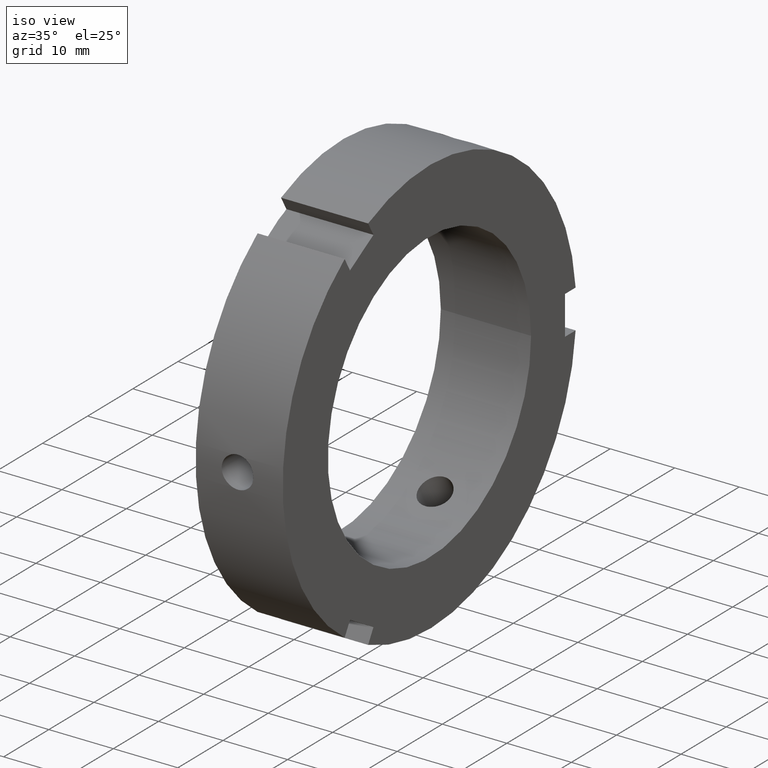
[diagram: clean part render]
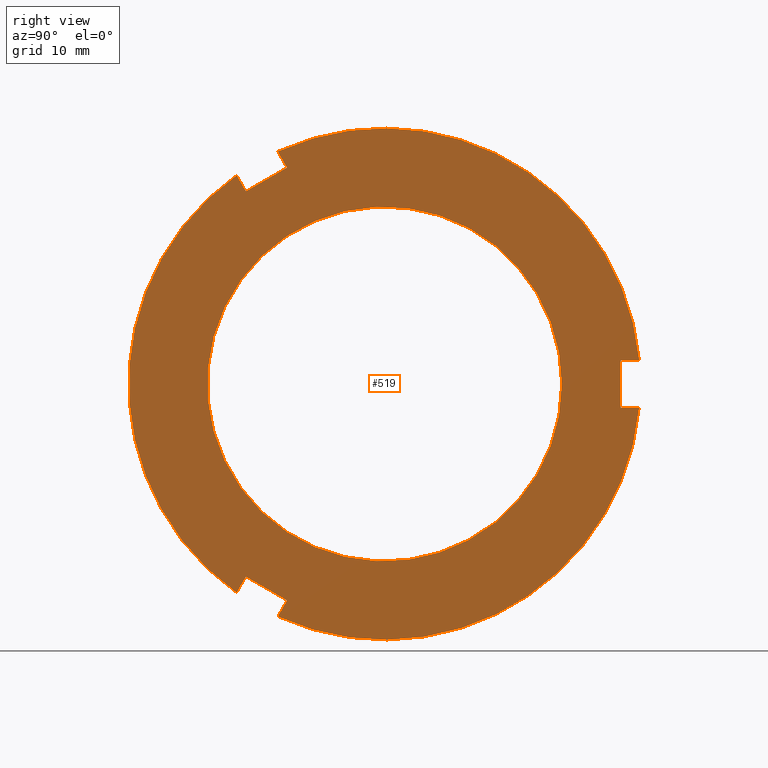
[diagram: tour spotlight — one face highlighted and labeled with its STEP entity id]
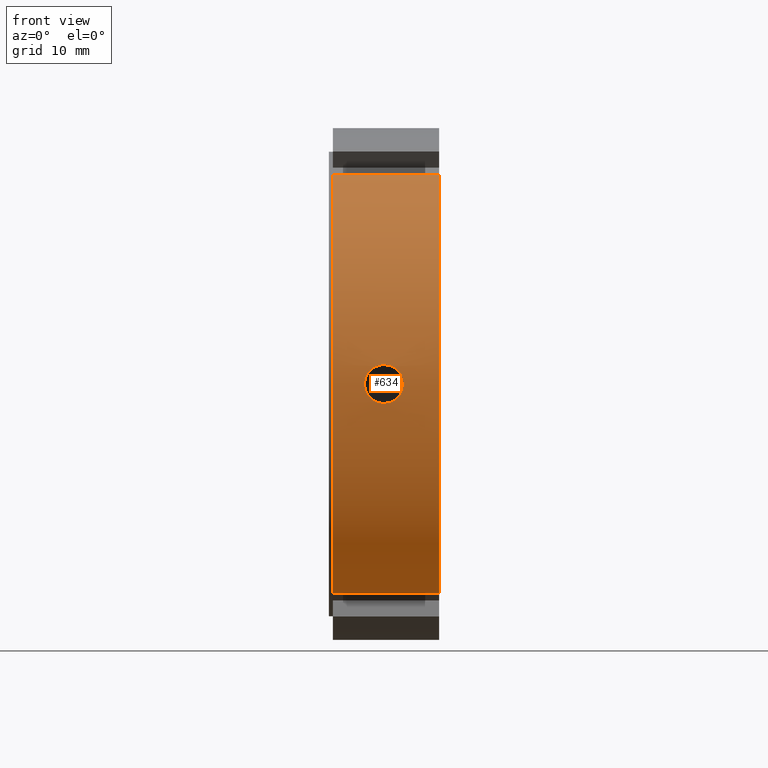
[diagram: tour spotlight — one face highlighted and labeled with its STEP entity id]
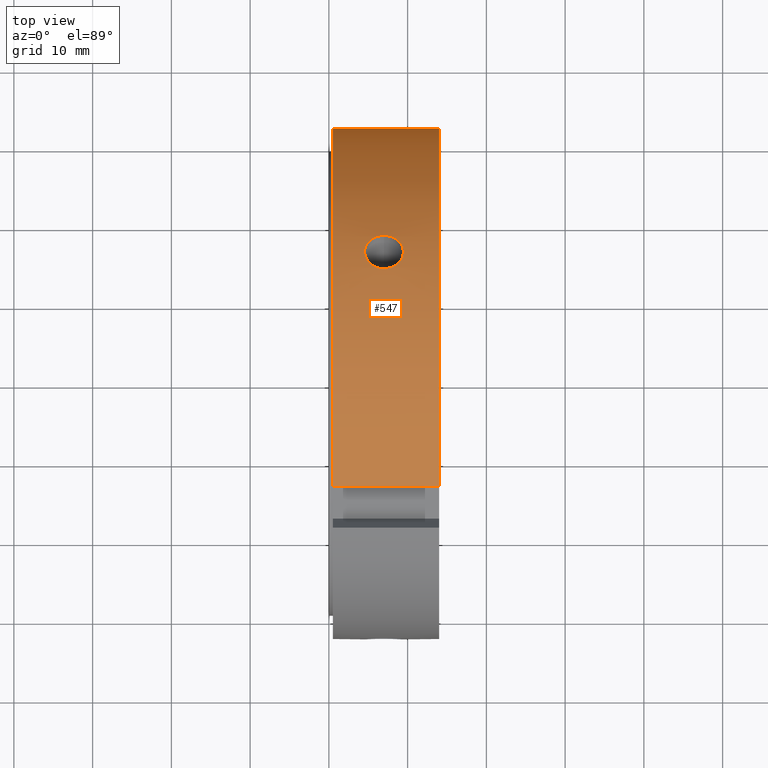
[diagram: tour spotlight — one face highlighted and labeled with its STEP entity id]
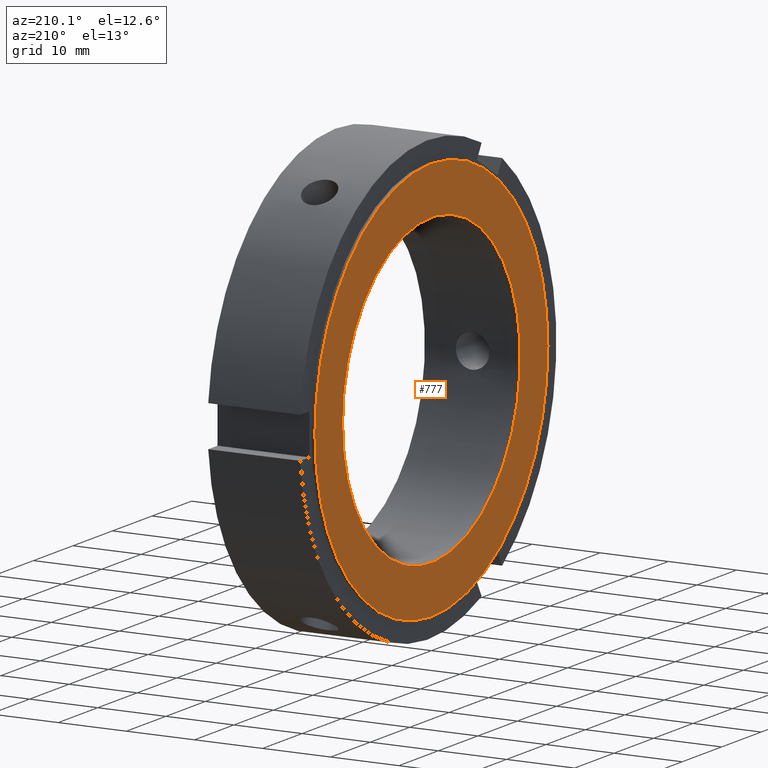
[diagram: tour spotlight — one face highlighted and labeled with its STEP entity id]
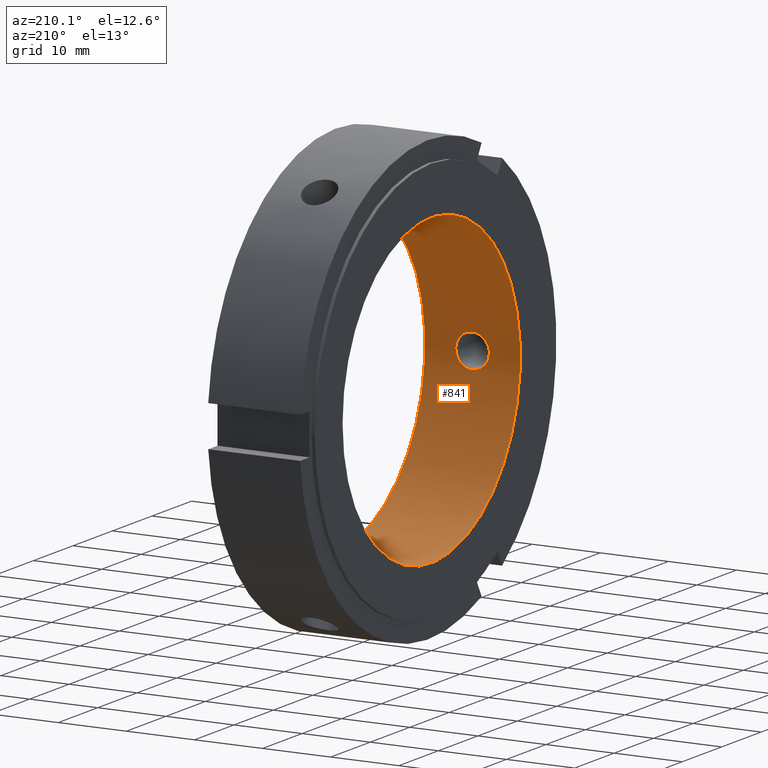
[diagram: tour spotlight — one face highlighted and labeled with its STEP entity id]
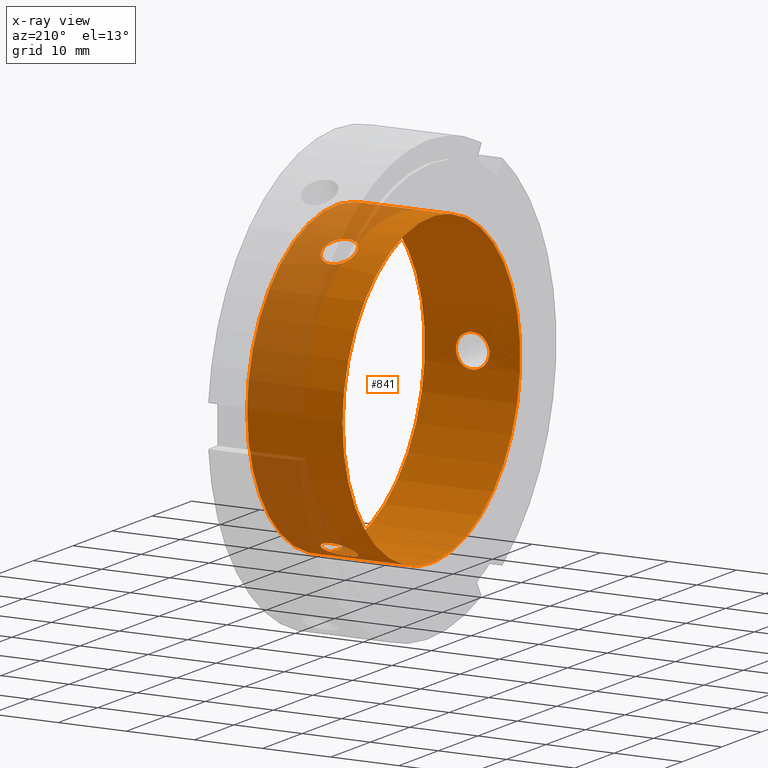
[diagram: x-ray of the same camera — body ghosted, this tour face saturated]
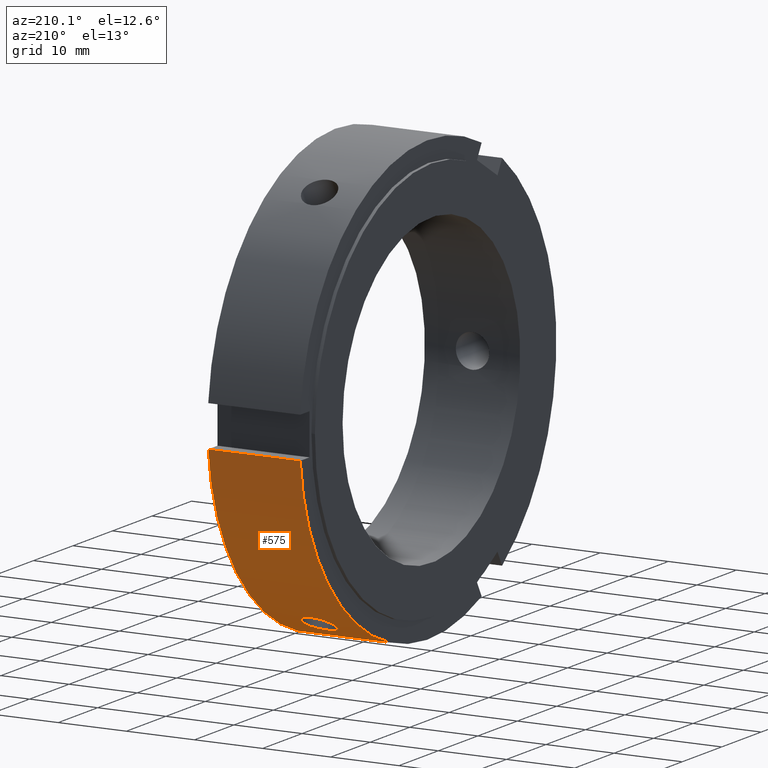
[diagram: tour spotlight — one face highlighted and labeled with its STEP entity id]
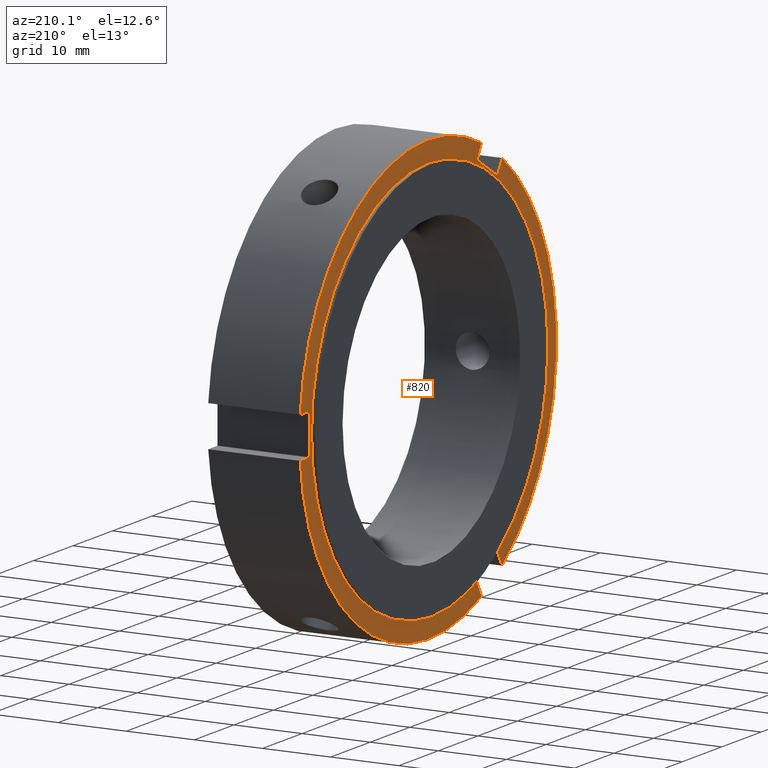
[diagram: tour spotlight — one face highlighted and labeled with its STEP entity id]
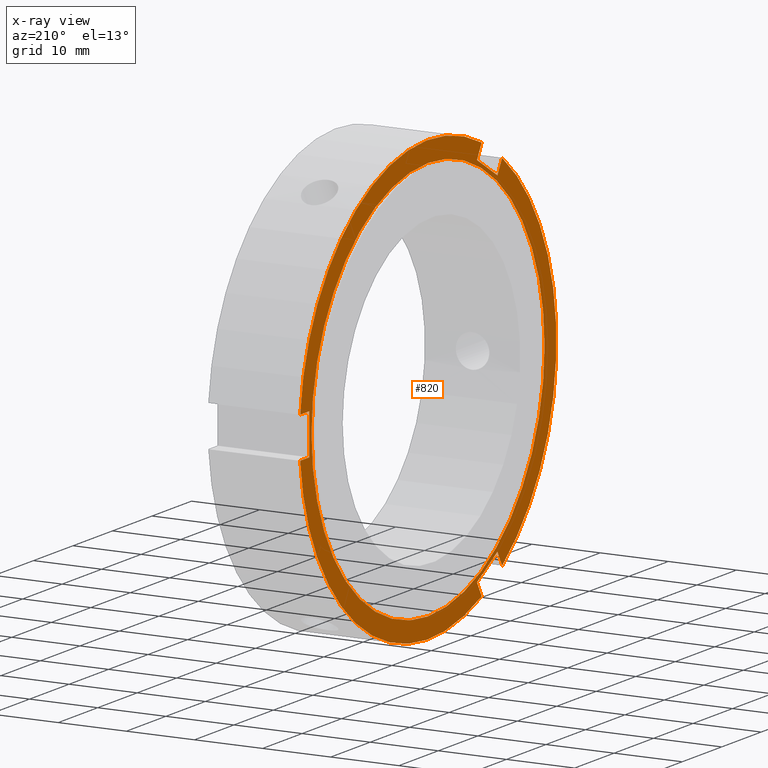
[diagram: x-ray of the same camera — body ghosted, this tour face saturated]
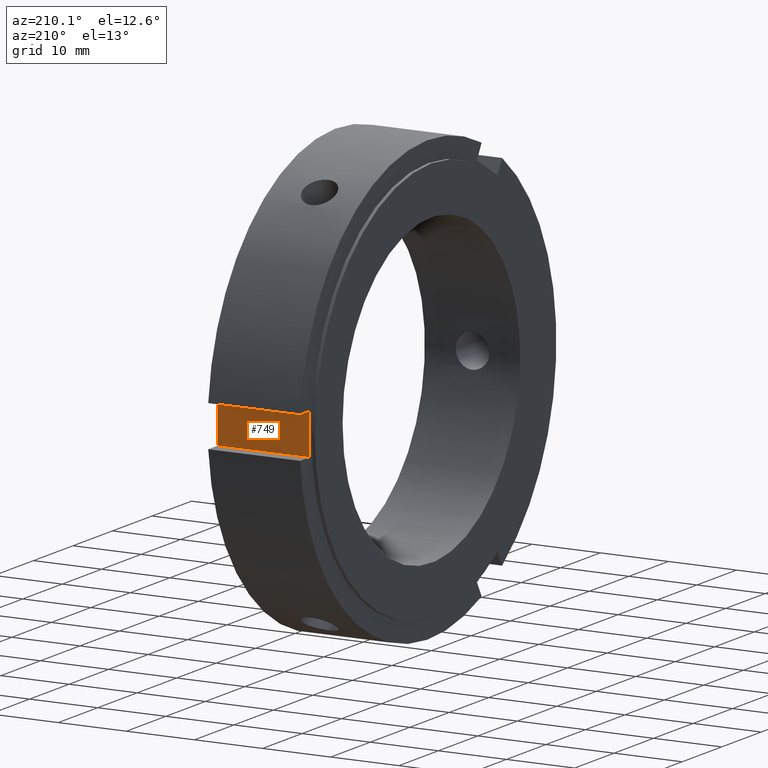
[diagram: tour spotlight — one face highlighted and labeled with its STEP entity id]
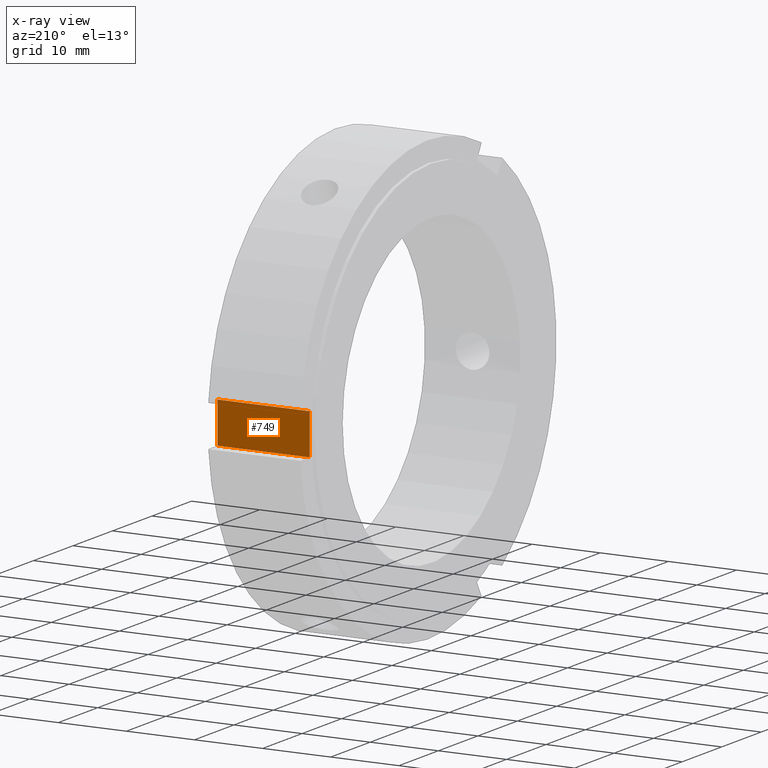
[diagram: x-ray of the same camera — body ghosted, this tour face saturated]
A machine part: a face-by-face anatomy tour. The part has 20 B-rep faces; the first image is the clean iso view, then the 8 largest visible faces are spotlighted one at a time (largest first), each with its STEP entity span.

Face 1 — right view, entity #519. In plain terms, the highlighted planar face has unit normal (1, 0, 0).
Definition (entity closure, byte-faithful):
#83=CARTESIAN_POINT('',(13.999999999999995,-17.598076211353330,-24.480762113533157));
#84=VERTEX_POINT('',#83);
#91=CARTESIAN_POINT('',(13.999999999999995,-18.778697336637737,-26.525657887014891));
#92=VERTEX_POINT('',#91);
#93=CARTESIAN_POINT('',(13.999999999999995,-18.778697336637741,-26.525657887014894));
#94=DIRECTION('',(0.0,0.500000000000000,0.866025403784439));
#95=VECTOR('',#94,2.361242250568814);
#96=LINE('',#93,#95);
#97=EDGE_CURVE('',#92,#84,#96,.T.);
#123=CARTESIAN_POINT('',(13.999999999999995,-13.582544913931107,-29.525657887014887));
#124=VERTEX_POINT('',#123);
#131=CARTESIAN_POINT('',(13.999999999999995,-12.401923788646702,-27.480762113533153));
#132=VERTEX_POINT('',#131);
#133=CARTESIAN_POINT('',(13.999999999999995,-12.401923788646705,-27.480762113533160));
#134=DIRECTION('',(0.0,-0.500000000000000,-0.866025403784438));
#135=VECTOR('',#134,2.361242250568819);
#136=LINE('',#133,#135);
#137=EDGE_CURVE('',#132,#124,#136,.T.);
#160=CARTESIAN_POINT('',(13.999999999999995,-17.598076211353337,-24.480762113533160));
#161=DIRECTION('',(0.0,0.866025403784438,-0.500000000000000));
#162=VECTOR('',#161,5.999999999999997);
#163=LINE('',#160,#162);
#164=EDGE_CURVE('',#84,#132,#163,.T.);
#273=CARTESIAN_POINT('',(13.999999999999995,-12.401923788646680,27.480762113533164));
#274=VERTEX_POINT('',#273);
#281=CARTESIAN_POINT('',(13.999999999999995,-13.582544913931088,29.525657887014898));
#282=VERTEX_POINT('',#281);
#283=CARTESIAN_POINT('',(13.999999999999995,-13.582544913931091,29.525657887014901));
#284=DIRECTION('',(0.0,0.500000000000000,-0.866025403784439));
#285=VECTOR('',#284,2.361242250568818);
#286=LINE('',#283,#285);
#287=EDGE_CURVE('',#282,#274,#286,.T.);
#313=CARTESIAN_POINT('',(13.999999999999995,-18.778697336637716,26.525657887014901));
#314=VERTEX_POINT('',#313);
#321=CARTESIAN_POINT('',(13.999999999999995,-17.598076211353309,24.480762113533167));
#322=VERTEX_POINT('',#321);
#323=CARTESIAN_POINT('',(13.999999999999995,-17.598076211353316,24.480762113533167));
#324=DIRECTION('',(0.0,-0.500000000000001,0.866025403784438));
#325=VECTOR('',#324,2.361242250568811);
#326=LINE('',#323,#325);
#327=EDGE_CURVE('',#322,#314,#326,.T.);
#350=CARTESIAN_POINT('',(13.999999999999995,-12.401923788646682,27.480762113533164));
#351=DIRECTION('',(0.0,-0.866025403784439,-0.500000000000000));
#352=VECTOR('',#351,5.999999999999996);
#353=LINE('',#350,#352);
#354=EDGE_CURVE('',#274,#322,#353,.T.);
#448=CARTESIAN_POINT('',(13.999999999999995,27.500000000000000,0.0));
#449=DIRECTION('',(1.0,0.0,0.0));
#450=DIRECTION('',(0.0,0.0,-1.0));
#451=AXIS2_PLACEMENT_3D('',#448,#449,#450);
#452=PLANE('',#451);
#453=ORIENTED_EDGE('',*,*,#97,.T.);
#454=ORIENTED_EDGE('',*,*,#164,.T.);
#455=ORIENTED_EDGE('',*,*,#137,.T.);
#456=CARTESIAN_POINT('',(13.999999999999995,32.361242250568814,-2.999999999999999));
#457=VERTEX_POINT('',#456);
#458=CARTESIAN_POINT('',(13.999999999999993,0.0,0.0));
#459=DIRECTION('',(1.0,0.0,0.0));
#460=DIRECTION('',(0.0,1.0,0.0));
#461=AXIS2_PLACEMENT_3D('',#458,#459,#460);
#462=CIRCLE('',#461,32.500000000000000);
#463=EDGE_CURVE('',#124,#457,#462,.T.);
#464=ORIENTED_EDGE('',*,*,#463,.T.);
#465=CARTESIAN_POINT('',(13.999999999999995,30.0,-2.999999999999999));
#466=VERTEX_POINT('',#465);
#467=CARTESIAN_POINT('',(13.999999999999995,32.361242250568814,-2.999999999999998));
#468=DIRECTION('',(0.0,-1.0,0.0));
#469=VECTOR('',#468,2.361242250568814);
#470=LINE('',#467,#469);
#471=EDGE_CURVE('',#457,#466,#470,.T.);
#472=ORIENTED_EDGE('',*,*,#471,.T.);
#473=CARTESIAN_POINT('',(13.999999999999995,30.0,2.999999999999999));
#474=VERTEX_POINT('',#473);
#475=CARTESIAN_POINT('',(13.999999999999995,30.0,-3.000000000000000));
#476=DIRECTION('',(0.0,0.0,1.0));
#477=VECTOR('',#476,5.999999999999998);
#478=LINE('',#475,#477);
#479=EDGE_CURVE('',#466,#474,#478,.T.);
#480=ORIENTED_EDGE('',*,*,#479,.T.);
#481=CARTESIAN_POINT('',(13.999999999999995,32.361242250568814,2.999999999999999));
#482=VERTEX_POINT('',#481);
#483=CARTESIAN_POINT('',(13.999999999999995,30.0,2.999999999999999));
#484=DIRECTION('',(0.0,1.0,0.0));
#485=VECTOR('',#484,2.361242250568814);
#486=LINE('',#483,#485);
#487=EDGE_CURVE('',#474,#482,#486,.T.);
#488=ORIENTED_EDGE('',*,*,#487,.T.);
#489=CARTESIAN_POINT('',(13.999999999999993,0.0,0.0));
#490=DIRECTION('',(1.0,0.0,0.0));
#491=DIRECTION('',(0.0,1.0,0.0));
#492=AXIS2_PLACEMENT_3D('',#489,#490,#491);
#493=CIRCLE('',#492,32.500000000000000);
#494=EDGE_CURVE('',#482,#282,#493,.T.);
#495=ORIENTED_EDGE('',*,*,#494,.T.);
#496=ORIENTED_EDGE('',*,*,#287,.T.);
#497=ORIENTED_EDGE('',*,*,#354,.T.);
#498=ORIENTED_EDGE('',*,*,#327,.T.);
#499=CARTESIAN_POINT('',(13.999999999999993,0.0,0.0));
#500=DIRECTION('',(1.0,0.0,0.0));
#501=DIRECTION('',(0.0,1.0,0.0));
#502=AXIS2_PLACEMENT_3D('',#499,#500,#501);
#503=CIRCLE('',#502,32.500000000000000);
#504=EDGE_CURVE('',#314,#92,#503,.T.);
#505=ORIENTED_EDGE('',*,*,#504,.T.);
#506=EDGE_LOOP('',(#453,#454,#455,#464,#472,#480,#488,#495,#496,#497,#498,#505));
#507=FACE_OUTER_BOUND('',#506,.T.);
#508=CARTESIAN_POINT('',(13.999999999999995,22.500000000000000,0.0));
#509=VERTEX_POINT('',#508);
#510=CARTESIAN_POINT('',(13.999999999999995,0.0,0.0));
#511=DIRECTION('',(1.0,0.0,0.0));
#512=DIRECTION('',(0.0,1.0,0.0));
#513=AXIS2_PLACEMENT_3D('',#510,#511,#512);
#514=CIRCLE('',#513,22.500000000000000);
#515=EDGE_CURVE('',#509,#509,#514,.T.);
#516=ORIENTED_EDGE('',*,*,#515,.F.);
#517=EDGE_LOOP('',(#516));
#518=FACE_BOUND('',#517,.T.);
#519=ADVANCED_FACE('',(#507,#518),#452,.T.);

Face 2 — front view, entity #634. In plain terms, the highlighted cylindrical surface (partial cylindrical patch) has radius 32.5 mm, axis along (1, 0, 0).
Definition (entity closure, byte-faithful):
#75=CARTESIAN_POINT('',(0.499999999999994,-18.778697336637734,-26.525657887014880));
#76=VERTEX_POINT('',#75);
#91=CARTESIAN_POINT('',(13.999999999999995,-18.778697336637737,-26.525657887014891));
#92=VERTEX_POINT('',#91);
#99=CARTESIAN_POINT('',(0.499999999999994,-18.778697336637734,-26.525657887014880));
#100=DIRECTION('',(1.0,0.0,0.0));
#101=VECTOR('',#100,13.500000000000000);
#102=LINE('',#99,#101);
#103=EDGE_CURVE('',#76,#92,#102,.T.);
#303=CARTESIAN_POINT('',(0.499999999999994,-18.778697336637716,26.525657887014894));
#304=VERTEX_POINT('',#303);
#313=CARTESIAN_POINT('',(13.999999999999995,-18.778697336637716,26.525657887014901));
#314=VERTEX_POINT('',#313);
#315=CARTESIAN_POINT('',(13.999999999999995,-18.778697336637716,26.525657887014901));
#316=DIRECTION('',(-1.0,0.0,0.0));
#317=VECTOR('',#316,13.500000000000000);
#318=LINE('',#315,#317);
#319=EDGE_CURVE('',#314,#304,#318,.T.);
#499=CARTESIAN_POINT('',(13.999999999999993,0.0,0.0));
#500=DIRECTION('',(1.0,0.0,0.0));
#501=DIRECTION('',(0.0,1.0,0.0));
#502=AXIS2_PLACEMENT_3D('',#499,#500,#501);
#503=CIRCLE('',#502,32.500000000000000);
#504=EDGE_CURVE('',#314,#92,#503,.T.);
#576=CARTESIAN_POINT('',(7.249999999999993,0.0,0.0));
#577=DIRECTION('',(1.0,0.0,0.0));
#578=DIRECTION('',(0.0,1.0,0.0));
#579=AXIS2_PLACEMENT_3D('',#576,#577,#578);
#580=CYLINDRICAL_SURFACE('',#579,32.500000000000000);
#581=ORIENTED_EDGE('',*,*,#103,.T.);
#582=ORIENTED_EDGE('',*,*,#504,.F.);
#583=ORIENTED_EDGE('',*,*,#319,.T.);
#584=CARTESIAN_POINT('',(0.499999999999994,0.0,0.0));
#585=DIRECTION('',(1.0,0.0,0.0));
#586=DIRECTION('',(0.0,1.0,0.0));
#587=AXIS2_PLACEMENT_3D('',#584,#585,#586);
#588=CIRCLE('',#587,32.499999999999993);
#589=EDGE_CURVE('',#304,#76,#588,.T.);
#590=ORIENTED_EDGE('',*,*,#589,.T.);
#591=EDGE_LOOP('',(#581,#582,#583,#590));
#592=FACE_OUTER_BOUND('',#591,.T.);
#593=CARTESIAN_POINT('',(6.999999999999994,-32.406878556102868,2.458500000000000));
#594=VERTEX_POINT('',#593);
#595=CARTESIAN_POINT('',(6.999999999999994,-32.406878556102868,2.458500000000000));
#596=CARTESIAN_POINT('',(7.308821499924727,-32.406878556102868,2.458500000000000));
#597=CARTESIAN_POINT('',(7.638146662988195,-32.411747431313700,2.396757788500281));
#598=CARTESIAN_POINT('',(8.243835254064031,-32.429327258547140,2.145822212323964));
#599=CARTESIAN_POINT('',(8.520208722892996,-32.441783734851064,1.956635320201254));
#600=CARTESIAN_POINT('',(8.956635077962162,-32.465161608583060,1.520208965132088));
#601=CARTESIAN_POINT('',(9.145822157180261,-32.477602516972169,1.243835388814245));
#602=CARTESIAN_POINT('',(9.396757878626824,-32.495146727474257,0.638146443799135));
#603=CARTESIAN_POINT('',(9.458499999999994,-32.500000000000000,0.308821157101273));
#604=CARTESIAN_POINT('',(9.458499999999994,-32.500000000000000,-0.308821157101272));
#605=CARTESIAN_POINT('',(9.396757878626824,-32.495146727474257,-0.638146443799134));
#606=CARTESIAN_POINT('',(9.145822157180261,-32.477602516972169,-1.243835388814244));
#607=CARTESIAN_POINT('',(8.956635077962162,-32.465161608583060,-1.520208965132088));
#608=CARTESIAN_POINT('',(8.520208722892996,-32.441783734851064,-1.956635320201254));
#609=CARTESIAN_POINT('',(8.243835254064031,-32.429327258547140,-2.145822212323964));
#610=CARTESIAN_POINT('',(7.638146662988195,-32.411747431313700,-2.396757788500281));
#611=CARTESIAN_POINT('',(7.308821499924727,-32.406878556102868,-2.458500000000000));
#612=CARTESIAN_POINT('',(6.691178500075261,-32.406878556102868,-2.458500000000000));
#613=CARTESIAN_POINT('',(6.361853337011794,-32.411747431313700,-2.396757788500281));
#614=CARTESIAN_POINT('',(5.756164745935958,-32.429327258547140,-2.145822212323964));
#615=CARTESIAN_POINT('',(5.479791277106994,-32.441783734851064,-1.956635320201254));
#616=CARTESIAN_POINT('',(5.043364922037828,-32.465161608583060,-1.520208965132088));
#617=CARTESIAN_POINT('',(4.854177842819729,-32.477602516972169,-1.243835388814245));
#618=CARTESIAN_POINT('',(4.603242121373166,-32.495146727474257,-0.638146443799135));
#619=CARTESIAN_POINT('',(4.541499999999994,-32.500000000000000,-0.308821157101273));
#620=CARTESIAN_POINT('',(4.541499999999994,-32.500000000000000,0.308821157101272));
#621=CARTESIAN_POINT('',(4.603242121373166,-32.495146727474257,0.638146443799134));
#622=CARTESIAN_POINT('',(4.854177842819728,-32.477602516972169,1.243835388814244));
#623=CARTESIAN_POINT('',(5.043364922037828,-32.465161608583060,1.520208965132087));
#624=CARTESIAN_POINT('',(5.479791277106994,-32.441783734851064,1.956635320201253));
#625=CARTESIAN_POINT('',(5.756164745935957,-32.429327258547140,2.145822212323964));
#626=CARTESIAN_POINT('',(6.361853337011794,-32.411747431313700,2.396757788500281));
#627=CARTESIAN_POINT('',(6.691178500075260,-32.406878556102868,2.458500000000000));
#628=CARTESIAN_POINT('',(6.999999999999993,-32.406878556102868,2.458500000000000));
#629=B_SPLINE_CURVE_WITH_KNOTS('',3,(#595,#596,#597,#598,#599,#600,#601,#602,#603,#604,#605,#606,#607,#608,#609,#610,#611,#612,#613,#614,#615,#616,#617,#618,#619,#620,#621,#622,#623,#624,#625,#626,#627,#628),.UNSPECIFIED.,.T.,.U.,(4,2,2,2,2,2,2,2,2,2,2,2,2,2,2,2,4),(0.0,0.092646449977420,0.185292899954840,0.277939247085222,0.370585594215604,0.463231941345985,0.555878288476367,0.648524738453787,0.741171188431207,0.833817638408627,0.926464088386047,1.019110435516429,1.111756782646811,1.204403129777192,1.297049476907574,1.389695926884994,1.482342376862414),.UNSPECIFIED.);
#630=EDGE_CURVE('',#594,#594,#629,.T.);
#631=ORIENTED_EDGE('',*,*,#630,.T.);
#632=EDGE_LOOP('',(#631));
#633=FACE_BOUND('',#632,.T.);
#634=ADVANCED_FACE('',(#592,#633),#580,.T.);

Face 3 — top view, entity #547. In plain terms, the highlighted cylindrical surface (partial cylindrical patch) has radius 32.5 mm, axis along (1, 0, 0).
Definition (entity closure, byte-faithful):
#175=CARTESIAN_POINT('',(6.999999999999994,18.332562733255489,26.835930086942248));
#176=VERTEX_POINT('',#175);
#177=CARTESIAN_POINT('',(6.999999999999994,18.332562733255489,26.835930086942241));
#178=CARTESIAN_POINT('',(7.308821499924727,18.332562733255489,26.835930086942241));
#179=CARTESIAN_POINT('',(7.638146662988192,18.281526847216313,26.871017762312540));
#180=CARTESIAN_POINT('',(8.243835254064029,18.073000177151062,27.011710127379004));
#181=CARTESIAN_POINT('',(8.520208722892996,17.915387760661726,27.117091198361180));
#182=CARTESIAN_POINT('',(8.956635077962162,17.549120387156776,27.355550208434138));
#183=CARTESIAN_POINT('',(9.145822157180259,17.315994303325329,27.504511139304189));
#184=CARTESIAN_POINT('',(9.396757878626822,16.800224395401898,27.822549343795899));
#185=CARTESIAN_POINT('',(9.458499999999994,16.517446967275813,27.991415044443599));
#186=CARTESIAN_POINT('',(9.458499999999994,15.982553032724198,28.300236201544877));
#187=CARTESIAN_POINT('',(9.396757878626824,15.694922332072395,28.460695787595036));
#188=CARTESIAN_POINT('',(9.145822157180261,15.161608213646865,28.748346528118436));
#189=CARTESIAN_POINT('',(8.956635077962162,14.916041221426299,28.875759173566227));
#190=CARTESIAN_POINT('',(8.520208722892996,14.526395974189356,29.073726518562442));
#191=CARTESIAN_POINT('',(8.243835254064027,14.356327081396108,29.157532339702961));
#192=CARTESIAN_POINT('',(7.638146662988192,14.130220584097410,29.267775550812818));
#193=CARTESIAN_POINT('',(7.308821499924727,14.074315822847403,29.294430086942249));
#194=CARTESIAN_POINT('',(6.691178500075261,14.074315822847403,29.294430086942249));
#195=CARTESIAN_POINT('',(6.361853337011797,14.130220584097408,29.267775550812818));
#196=CARTESIAN_POINT('',(5.756164745935962,14.356327081396106,29.157532339702961));
#197=CARTESIAN_POINT('',(5.479791277106996,14.526395974189352,29.073726518562445));
#198=CARTESIAN_POINT('',(5.043364922037828,14.916041221426294,28.875759173566237));
#199=CARTESIAN_POINT('',(4.854177842819732,15.161608213646861,28.748346528118439));
#200=CARTESIAN_POINT('',(4.603242121373167,15.694922332072391,28.460695787595039));
#201=CARTESIAN_POINT('',(4.541499999999994,15.982553032724196,28.300236201544870));
#202=CARTESIAN_POINT('',(4.541499999999994,16.517446967275813,27.991415044443599));
#203=CARTESIAN_POINT('',(4.603242121373166,16.800224395401891,27.822549343795902));
#204=CARTESIAN_POINT('',(4.854177842819729,17.315994303325326,27.504511139304192));
#205=CARTESIAN_POINT('',(5.043364922037828,17.549120387156776,27.355550208434138));
#206=CARTESIAN_POINT('',(5.479791277106994,17.915387760661726,27.117091198361180));
#207=CARTESIAN_POINT('',(5.756164745935958,18.073000177151062,27.011710127379004));
#208=CARTESIAN_POINT('',(6.361853337011796,18.281526847216313,26.871017762312540));
#209=CARTESIAN_POINT('',(6.691178500075260,18.332562733255489,26.835930086942241));
#210=CARTESIAN_POINT('',(6.999999999999993,18.332562733255489,26.835930086942241));
#211=B_SPLINE_CURVE_WITH_KNOTS('',3,(#177,#178,#179,#180,#181,#182,#183,#184,#185,#186,#187,#188,#189,#190,#191,#192,#193,#194,#195,#196,#197,#198,#199,#200,#201,#202,#203,#204,#205,#206,#207,#208,#209,#210),.UNSPECIFIED.,.T.,.U.,(4,2,2,2,2,2,2,2,2,2,2,2,2,2,2,2,4),(0.0,0.092646449977420,0.185292899954840,0.277939247085222,0.370585594215604,0.463231941345986,0.555878288476367,0.648524738453787,0.741171188431207,0.833817638408627,0.926464088386047,1.019110435516429,1.111756782646812,1.204403129777194,1.297049476907576,1.389695926884996,1.482342376862416),.UNSPECIFIED.);
#212=EDGE_CURVE('',#176,#176,#211,.T.);
#265=CARTESIAN_POINT('',(0.499999999999994,-13.582544913931084,29.525657887014894));
#266=VERTEX_POINT('',#265);
#281=CARTESIAN_POINT('',(13.999999999999995,-13.582544913931088,29.525657887014898));
#282=VERTEX_POINT('',#281);
#289=CARTESIAN_POINT('',(0.499999999999994,-13.582544913931084,29.525657887014898));
#290=DIRECTION('',(1.0,0.0,0.0));
#291=VECTOR('',#290,13.500000000000000);
#292=LINE('',#289,#291);
#293=EDGE_CURVE('',#266,#282,#292,.T.);
#481=CARTESIAN_POINT('',(13.999999999999995,32.361242250568814,2.999999999999999));
#482=VERTEX_POINT('',#481);
#489=CARTESIAN_POINT('',(13.999999999999993,0.0,0.0));
#490=DIRECTION('',(1.0,0.0,0.0));
#491=DIRECTION('',(0.0,1.0,0.0));
#492=AXIS2_PLACEMENT_3D('',#489,#490,#491);
#493=CIRCLE('',#492,32.500000000000000);
#494=EDGE_CURVE('',#482,#282,#493,.T.);
#520=CARTESIAN_POINT('',(7.249999999999993,0.0,0.0));
#521=DIRECTION('',(1.0,0.0,0.0));
#522=DIRECTION('',(0.0,1.0,0.0));
#523=AXIS2_PLACEMENT_3D('',#520,#521,#522);
#524=CYLINDRICAL_SURFACE('',#523,32.500000000000000);
#525=ORIENTED_EDGE('',*,*,#293,.T.);
#526=ORIENTED_EDGE('',*,*,#494,.F.);
#527=CARTESIAN_POINT('',(0.499999999999994,32.361242250568807,2.999999999999999));
#528=VERTEX_POINT('',#527);
#529=CARTESIAN_POINT('',(13.999999999999995,32.361242250568814,2.999999999999999));
#530=DIRECTION('',(-1.0,0.0,0.0));
#531=VECTOR('',#530,13.500000000000000);
#532=LINE('',#529,#531);
#533=EDGE_CURVE('',#482,#528,#532,.T.);
#534=ORIENTED_EDGE('',*,*,#533,.T.);
#535=CARTESIAN_POINT('',(0.499999999999994,0.0,0.0));
#536=DIRECTION('',(1.0,0.0,0.0));
#537=DIRECTION('',(0.0,1.0,0.0));
#538=AXIS2_PLACEMENT_3D('',#535,#536,#537);
#539=CIRCLE('',#538,32.499999999999993);
#540=EDGE_CURVE('',#528,#266,#539,.T.);
#541=ORIENTED_EDGE('',*,*,#540,.T.);
#542=EDGE_LOOP('',(#525,#526,#534,#541));
#543=FACE_OUTER_BOUND('',#542,.T.);
#544=ORIENTED_EDGE('',*,*,#212,.T.);
#545=EDGE_LOOP('',(#544));
#546=FACE_BOUND('',#545,.T.);
#547=ADVANCED_FACE('',(#543,#546),#524,.T.);

Face 4 — auxiliary view, entity #777. In plain terms, the highlighted planar face has unit normal (-1, 0, 0).
Definition (entity closure, byte-faithful):
#750=CARTESIAN_POINT('',(-7.438286E-015,26.0,0.0));
#751=DIRECTION('',(-1.0,0.0,0.0));
#752=DIRECTION('',(0.0,0.0,1.0));
#753=AXIS2_PLACEMENT_3D('',#750,#751,#752);
#754=PLANE('',#753);
#755=CARTESIAN_POINT('',(-8.881784E-015,29.500000000000000,0.0));
#756=VERTEX_POINT('',#755);
#757=CARTESIAN_POINT('',(-8.881784E-015,0.0,0.0));
#758=DIRECTION('',(1.0,0.0,0.0));
#759=DIRECTION('',(0.0,1.0,0.0));
#760=AXIS2_PLACEMENT_3D('',#757,#758,#759);
#761=CIRCLE('',#760,29.500000000000000);
#762=EDGE_CURVE('',#756,#756,#761,.T.);
#763=ORIENTED_EDGE('',*,*,#762,.F.);
#764=EDGE_LOOP('',(#763));
#765=FACE_OUTER_BOUND('',#764,.T.);
#766=CARTESIAN_POINT('',(-5.994788E-015,22.500000000000000,0.0));
#767=VERTEX_POINT('',#766);
#768=CARTESIAN_POINT('',(-5.995638E-015,0.0,0.0));
#769=DIRECTION('',(1.0,0.0,0.0));
#770=DIRECTION('',(0.0,1.0,0.0));
#771=AXIS2_PLACEMENT_3D('',#768,#769,#770);
#772=CIRCLE('',#771,22.500000000000000);
#773=EDGE_CURVE('',#767,#767,#772,.T.);
#774=ORIENTED_EDGE('',*,*,#773,.T.);
#775=EDGE_LOOP('',(#774));
#776=FACE_BOUND('',#775,.T.);
#777=ADVANCED_FACE('',(#765,#776),#754,.T.);

Face 5 — auxiliary view, entity #841. An x-ray twin of the same camera follows (body ghosted, this face saturated) — the face is partly hidden behind the body. In plain terms, the highlighted cylindrical surface (bore or boss wall) has radius 22.5 mm, axis along (1, 0, 0).
Definition (entity closure, byte-faithful):
#216=CARTESIAN_POINT('',(6.999999999999994,13.311763771225131,18.139651190116588));
#217=VERTEX_POINT('',#216);
#218=CARTESIAN_POINT('',(6.999999999999993,13.311763771225127,18.139651190116588));
#219=CARTESIAN_POINT('',(6.691039606320619,13.311763771225127,18.139651190116588));
#220=CARTESIAN_POINT('',(6.361655301601024,13.261777622904932,18.176665359321888));
#221=CARTESIAN_POINT('',(5.756005436668366,13.057158723953332,18.324205720284191));
#222=CARTESIAN_POINT('',(5.479718704991167,12.902351376096037,18.434402624333682));
#223=CARTESIAN_POINT('',(5.043438312237379,12.541426215450567,18.681822693873336));
#224=CARTESIAN_POINT('',(4.854271935280004,12.311145769824947,18.835539652057975));
#225=CARTESIAN_POINT('',(4.603295976404795,11.799314472428611,19.160324687455493));
#226=CARTESIAN_POINT('',(4.541499999999994,11.517566249116411,19.331092139196446));
#227=CARTESIAN_POINT('',(4.541499999999994,10.982433750883601,19.640051031103280));
#228=CARTESIAN_POINT('',(4.603295976404795,10.693670687880299,19.798668424092291));
#229=CARTESIAN_POINT('',(4.854271935280004,10.156482947758853,20.079534812390708));
#230=CARTESIAN_POINT('',(5.043438312237381,9.908219934165684,20.202105049204981));
#231=CARTESIAN_POINT('',(5.479718704991166,9.513485288215493,20.390965372419107));
#232=CARTESIAN_POINT('',(5.756005436668366,9.340648295961591,20.469934016331276));
#233=CARTESIAN_POINT('',(6.361655301601022,9.110565145808913,20.573369000436607));
#234=CARTESIAN_POINT('',(6.691039606320620,9.053516860817041,20.598151190116589));
#235=CARTESIAN_POINT('',(7.308960393679368,9.053516860817041,20.598151190116589));
#236=CARTESIAN_POINT('',(7.638344698398965,9.110565145808913,20.573369000436607));
#237=CARTESIAN_POINT('',(8.243994563331622,9.340648295961591,20.469934016331276));
#238=CARTESIAN_POINT('',(8.520281295008822,9.513485288215493,20.390965372419107));
#239=CARTESIAN_POINT('',(8.956561687762608,9.908219934165684,20.202105049204981));
#240=CARTESIAN_POINT('',(9.145728064719982,10.156482947758857,20.079534812390708));
#241=CARTESIAN_POINT('',(9.396704023595191,10.693670687880301,19.798668424092295));
#242=CARTESIAN_POINT('',(9.458499999999994,10.982433750883601,19.640051031103280));
#243=CARTESIAN_POINT('',(9.458499999999994,11.517566249116413,19.331092139196446));
#244=CARTESIAN_POINT('',(9.396704023595193,11.799314472428614,19.160324687455489));
#245=CARTESIAN_POINT('',(9.145728064719981,12.311145769824952,18.835539652057971));
#246=CARTESIAN_POINT('',(8.956561687762608,12.541426215450567,18.681822693873336));
#247=CARTESIAN_POINT('',(8.520281295008820,12.902351376096037,18.434402624333682));
#248=CARTESIAN_POINT('',(8.243994563331619,13.057158723953332,18.324205720284191));
#249=CARTESIAN_POINT('',(7.638344698398964,13.261777622904932,18.176665359321888));
#250=CARTESIAN_POINT('',(7.308960393679367,13.311763771225129,18.139651190116588));
#251=CARTESIAN_POINT('',(6.999999999999994,13.311763771225129,18.139651190116588));
#252=B_SPLINE_CURVE_WITH_KNOTS('',3,(#218,#219,#220,#221,#222,#223,#224,#225,#226,#227,#228,#229,#230,#231,#232,#233,#234,#235,#236,#237,#238,#239,#240,#241,#242,#243,#244,#245,#246,#247,#248,#249,#250,#251),.UNSPECIFIED.,.T.,.U.,(4,2,2,2,2,2,2,2,2,2,2,2,2,2,2,2,4),(0.0,0.092688118103812,0.185376236207624,0.278063903779674,0.370751571351724,0.463439238923773,0.556126906495822,0.648815024599634,0.741503142703446,0.834191260807259,0.926879378911071,1.019567046483120,1.112254714055169,1.204942381627219,1.297630049199269,1.390318167303081,1.483006285406893),.UNSPECIFIED.);
#253=EDGE_CURVE('',#217,#217,#252,.T.);
#406=CARTESIAN_POINT('',(6.999999999999994,9.053516860817030,-20.598151190116596));
#407=VERTEX_POINT('',#406);
#408=CARTESIAN_POINT('',(6.999999999999994,9.053516860817032,-20.598151190116596));
#409=CARTESIAN_POINT('',(6.691039606320620,9.053516860817032,-20.598151190116596));
#410=CARTESIAN_POINT('',(6.361655301601025,9.110565145808900,-20.573369000436614));
#411=CARTESIAN_POINT('',(5.756005436668369,9.340648295961579,-20.469934016331280));
#412=CARTESIAN_POINT('',(5.479718704991167,9.513485288215476,-20.390965372419110));
#413=CARTESIAN_POINT('',(5.043438312237379,9.908219934165668,-20.202105049204985));
#414=CARTESIAN_POINT('',(4.854271935280003,10.156482947758841,-20.079534812390712));
#415=CARTESIAN_POINT('',(4.603295976404793,10.693670687880291,-19.798668424092298));
#416=CARTESIAN_POINT('',(4.541499999999994,10.982433750883589,-19.640051031103280));
#417=CARTESIAN_POINT('',(4.541499999999994,11.517566249116404,-19.331092139196450));
#418=CARTESIAN_POINT('',(4.603295976404795,11.799314472428604,-19.160324687455493));
#419=CARTESIAN_POINT('',(4.854271935280009,12.311145769824940,-18.835539652057975));
#420=CARTESIAN_POINT('',(5.043438312237378,12.541426215450556,-18.681822693873343));
#421=CARTESIAN_POINT('',(5.479718704991166,12.902351376096028,-18.434402624333682));
#422=CARTESIAN_POINT('',(5.756005436668366,13.057158723953322,-18.324205720284198));
#423=CARTESIAN_POINT('',(6.361655301601024,13.261777622904919,-18.176665359321895));
#424=CARTESIAN_POINT('',(6.691039606320621,13.311763771225122,-18.139651190116592));
#425=CARTESIAN_POINT('',(7.308960393679368,13.311763771225122,-18.139651190116592));
#426=CARTESIAN_POINT('',(7.638344698398962,13.261777622904919,-18.176665359321895));
#427=CARTESIAN_POINT('',(8.243994563331619,13.057158723953325,-18.324205720284194));
#428=CARTESIAN_POINT('',(8.520281295008822,12.902351376096028,-18.434402624333686));
#429=CARTESIAN_POINT('',(8.956561687762610,12.541426215450556,-18.681822693873343));
#430=CARTESIAN_POINT('',(9.145728064719982,12.311145769824938,-18.835539652057978));
#431=CARTESIAN_POINT('',(9.396704023595195,11.799314472428598,-19.160324687455496));
#432=CARTESIAN_POINT('',(9.458499999999994,11.517566249116404,-19.331092139196450));
#433=CARTESIAN_POINT('',(9.458499999999994,10.982433750883590,-19.640051031103283));
#434=CARTESIAN_POINT('',(9.396704023595197,10.693670687880292,-19.798668424092298));
#435=CARTESIAN_POINT('',(9.145728064719986,10.156482947758843,-20.079534812390712));
#436=CARTESIAN_POINT('',(8.956561687762608,9.908219934165668,-20.202105049204985));
#437=CARTESIAN_POINT('',(8.520281295008822,9.513485288215476,-20.390965372419110));
#438=CARTESIAN_POINT('',(8.243994563331620,9.340648295961579,-20.469934016331276));
#439=CARTESIAN_POINT('',(7.638344698398965,9.110565145808900,-20.573369000436607));
#440=CARTESIAN_POINT('',(7.308960393679368,9.053516860817034,-20.598151190116596));
#441=CARTESIAN_POINT('',(6.999999999999994,9.053516860817034,-20.598151190116596));
#442=B_SPLINE_CURVE_WITH_KNOTS('',3,(#408,#409,#410,#411,#412,#413,#414,#415,#416,#417,#418,#419,#420,#421,#422,#423,#424,#425,#426,#427,#428,#429,#430,#431,#432,#433,#434,#435,#436,#437,#438,#439,#440,#441),.UNSPECIFIED.,.T.,.U.,(4,2,2,2,2,2,2,2,2,2,2,2,2,2,2,2,4),(0.0,0.092688118103812,0.185376236207624,0.278063903779674,0.370751571351724,0.463439238923773,0.556126906495823,0.648815024599635,0.741503142703447,0.834191260807259,0.926879378911071,1.019567046483121,1.112254714055170,1.204942381627220,1.297630049199270,1.390318167303082,1.483006285406894),.UNSPECIFIED.);
#443=EDGE_CURVE('',#407,#407,#442,.T.);
#508=CARTESIAN_POINT('',(13.999999999999995,22.500000000000000,0.0));
#509=VERTEX_POINT('',#508);
#510=CARTESIAN_POINT('',(13.999999999999995,0.0,0.0));
#511=DIRECTION('',(1.0,0.0,0.0));
#512=DIRECTION('',(0.0,1.0,0.0));
#513=AXIS2_PLACEMENT_3D('',#510,#511,#512);
#514=CIRCLE('',#513,22.500000000000000);
#515=EDGE_CURVE('',#509,#509,#514,.T.);
#643=CARTESIAN_POINT('',(6.999999999999994,-22.365280632042154,2.458500000000000));
#644=VERTEX_POINT('',#643);
#645=CARTESIAN_POINT('',(6.999999999999993,-22.365280632042154,2.458500000000000));
#646=CARTESIAN_POINT('',(6.691039606320620,-22.365280632042154,2.458500000000000));
#647=CARTESIAN_POINT('',(6.361655301601020,-22.372342768713821,2.396703641114719));
#648=CARTESIAN_POINT('',(5.756005436668365,-22.397807019914900,2.145728296047083));
#649=CARTESIAN_POINT('',(5.479718704991166,-22.415836664311513,1.956562748085426));
#650=CARTESIAN_POINT('',(5.043438312237381,-22.449646149616235,1.520282355331640));
#651=CARTESIAN_POINT('',(4.854271935280003,-22.467628717583786,1.243995160332736));
#652=CARTESIAN_POINT('',(4.603295976404793,-22.492985160308898,0.638343736636802));
#653=CARTESIAN_POINT('',(4.541499999999994,-22.500000000000000,0.308958891906832));
#654=CARTESIAN_POINT('',(4.541499999999994,-22.500000000000000,-0.308958891906832));
#655=CARTESIAN_POINT('',(4.603295976404794,-22.492985160308898,-0.638343736636803));
#656=CARTESIAN_POINT('',(4.854271935280004,-22.467628717583786,-1.243995160332737));
#657=CARTESIAN_POINT('',(5.043438312237381,-22.449646149616235,-1.520282355331640));
#658=CARTESIAN_POINT('',(5.479718704991166,-22.415836664311513,-1.956562748085426));
#659=CARTESIAN_POINT('',(5.756005436668365,-22.397807019914900,-2.145728296047083));
#660=CARTESIAN_POINT('',(6.361655301601020,-22.372342768713821,-2.396703641114719));
#661=CARTESIAN_POINT('',(6.691039606320621,-22.365280632042154,-2.458500000000000));
#662=CARTESIAN_POINT('',(7.308960393679367,-22.365280632042154,-2.458500000000000));
#663=CARTESIAN_POINT('',(7.638344698398968,-22.372342768713821,-2.396703641114719));
#664=CARTESIAN_POINT('',(8.243994563331624,-22.397807019914900,-2.145728296047083));
#665=CARTESIAN_POINT('',(8.520281295008822,-22.415836664311513,-1.956562748085426));
#666=CARTESIAN_POINT('',(8.956561687762608,-22.449646149616235,-1.520282355331640));
#667=CARTESIAN_POINT('',(9.145728064719984,-22.467628717583786,-1.243995160332737));
#668=CARTESIAN_POINT('',(9.396704023595195,-22.492985160308898,-0.638343736636803));
#669=CARTESIAN_POINT('',(9.458499999999994,-22.500000000000000,-0.308958891906832));
#670=CARTESIAN_POINT('',(9.458499999999994,-22.500000000000000,0.308958891906831));
#671=CARTESIAN_POINT('',(9.396704023595195,-22.492985160308898,0.638343736636801));
#672=CARTESIAN_POINT('',(9.145728064719984,-22.467628717583786,1.243995160332736));
#673=CARTESIAN_POINT('',(8.956561687762608,-22.449646149616235,1.520282355331640));
#674=CARTESIAN_POINT('',(8.520281295008822,-22.415836664311513,1.956562748085426));
#675=CARTESIAN_POINT('',(8.243994563331622,-22.397807019914900,2.145728296047083));
#676=CARTESIAN_POINT('',(7.638344698398967,-22.372342768713821,2.396703641114718));
#677=CARTESIAN_POINT('',(7.308960393679367,-22.365280632042154,2.458500000000000));
#678=CARTESIAN_POINT('',(6.999999999999994,-22.365280632042154,2.458500000000000));
#679=B_SPLINE_CURVE_WITH_KNOTS('',3,(#645,#646,#647,#648,#649,#650,#651,#652,#653,#654,#655,#656,#657,#658,#659,#660,#661,#662,#663,#664,#665,#666,#667,#668,#669,#670,#671,#672,#673,#674,#675,#676,#677,#678),.UNSPECIFIED.,.T.,.U.,(4,2,2,2,2,2,2,2,2,2,2,2,2,2,2,2,4),(0.0,0.092688118103812,0.185376236207624,0.278063903779674,0.370751571351723,0.463439238923772,0.556126906495822,0.648815024599634,0.741503142703446,0.834191260807258,0.926879378911070,1.019567046483120,1.112254714055169,1.204942381627218,1.297630049199268,1.390318167303080,1.483006285406892),.UNSPECIFIED.);
#680=EDGE_CURVE('',#644,#644,#679,.T.);
#766=CARTESIAN_POINT('',(-5.994788E-015,22.500000000000000,0.0));
#767=VERTEX_POINT('',#766);
#768=CARTESIAN_POINT('',(-5.995638E-015,0.0,0.0));
#769=DIRECTION('',(1.0,0.0,0.0));
#770=DIRECTION('',(0.0,1.0,0.0));
#771=AXIS2_PLACEMENT_3D('',#768,#769,#770);
#772=CIRCLE('',#771,22.500000000000000);
#773=EDGE_CURVE('',#767,#767,#772,.T.);
#821=CARTESIAN_POINT('',(6.999999999999994,0.0,0.0));
#822=DIRECTION('',(1.0,0.0,0.0));
#823=DIRECTION('',(0.0,1.0,0.0));
#824=AXIS2_PLACEMENT_3D('',#821,#822,#823);
#825=CYLINDRICAL_SURFACE('',#824,22.500000000000000);
#826=ORIENTED_EDGE('',*,*,#773,.F.);
#827=EDGE_LOOP('',(#826));
#828=FACE_OUTER_BOUND('',#827,.T.);
#829=ORIENTED_EDGE('',*,*,#253,.T.);
#830=EDGE_LOOP('',(#829));
#831=FACE_BOUND('',#830,.T.);
#832=ORIENTED_EDGE('',*,*,#443,.T.);
#833=EDGE_LOOP('',(#832));
#834=FACE_BOUND('',#833,.T.);
#835=ORIENTED_EDGE('',*,*,#680,.T.);
#836=EDGE_LOOP('',(#835));
#837=FACE_BOUND('',#836,.T.);
#838=ORIENTED_EDGE('',*,*,#515,.T.);
#839=EDGE_LOOP('',(#838));
#840=FACE_BOUND('',#839,.T.);
#841=ADVANCED_FACE('',(#828,#831,#834,#837,#840),#825,.F.);

Face 6 — auxiliary view, entity #575. In plain terms, the highlighted cylindrical surface (partial cylindrical patch) has radius 32.5 mm, axis along (1, 0, 0).
Definition (entity closure, byte-faithful):
#113=CARTESIAN_POINT('',(0.499999999999994,-13.582544913931105,-29.525657887014884));
#114=VERTEX_POINT('',#113);
#123=CARTESIAN_POINT('',(13.999999999999995,-13.582544913931107,-29.525657887014887));
#124=VERTEX_POINT('',#123);
#125=CARTESIAN_POINT('',(13.999999999999995,-13.582544913931107,-29.525657887014887));
#126=DIRECTION('',(-1.0,0.0,0.0));
#127=VECTOR('',#126,13.500000000000000);
#128=LINE('',#125,#127);
#129=EDGE_CURVE('',#124,#114,#128,.T.);
#365=CARTESIAN_POINT('',(6.999999999999994,14.074315822847387,-29.294430086942256));
#366=VERTEX_POINT('',#365);
#367=CARTESIAN_POINT('',(6.999999999999993,14.074315822847385,-29.294430086942253));
#368=CARTESIAN_POINT('',(7.308821499924726,14.074315822847385,-29.294430086942253));
#369=CARTESIAN_POINT('',(7.638146662988192,14.130220584097390,-29.267775550812836));
#370=CARTESIAN_POINT('',(8.243835254064027,14.356327081396088,-29.157532339702978));
#371=CARTESIAN_POINT('',(8.520208722892996,14.526395974189336,-29.073726518562452));
#372=CARTESIAN_POINT('',(8.956635077962162,14.916041221426276,-28.875759173566237));
#373=CARTESIAN_POINT('',(9.145822157180261,15.161608213646842,-28.748346528118446));
#374=CARTESIAN_POINT('',(9.396757878626824,15.694922332072371,-28.460695787595043));
#375=CARTESIAN_POINT('',(9.458499999999994,15.982553032724185,-28.300236201544887));
#376=CARTESIAN_POINT('',(9.458499999999994,16.517446967275799,-27.991415044443613));
#377=CARTESIAN_POINT('',(9.396757878626822,16.800224395401877,-27.822549343795906));
#378=CARTESIAN_POINT('',(9.145822157180257,17.315994303325311,-27.504511139304199));
#379=CARTESIAN_POINT('',(8.956635077962160,17.549120387156769,-27.355550208434156));
#380=CARTESIAN_POINT('',(8.520208722892992,17.915387760661716,-27.117091198361205));
#381=CARTESIAN_POINT('',(8.243835254064027,18.073000177151044,-27.011710127379018));
#382=CARTESIAN_POINT('',(7.638146662988192,18.281526847216295,-26.871017762312555));
#383=CARTESIAN_POINT('',(7.308821499924727,18.332562733255475,-26.835930086942245));
#384=CARTESIAN_POINT('',(6.691178500075261,18.332562733255475,-26.835930086942245));
#385=CARTESIAN_POINT('',(6.361853337011796,18.281526847216295,-26.871017762312555));
#386=CARTESIAN_POINT('',(5.756164745935960,18.073000177151044,-27.011710127379018));
#387=CARTESIAN_POINT('',(5.479791277106996,17.915387760661716,-27.117091198361205));
#388=CARTESIAN_POINT('',(5.043364922037829,17.549120387156769,-27.355550208434156));
#389=CARTESIAN_POINT('',(4.854177842819732,17.315994303325311,-27.504511139304199));
#390=CARTESIAN_POINT('',(4.603242121373167,16.800224395401877,-27.822549343795906));
#391=CARTESIAN_POINT('',(4.541499999999995,16.517446967275802,-27.991415044443613));
#392=CARTESIAN_POINT('',(4.541499999999994,15.982553032724187,-28.300236201544891));
#393=CARTESIAN_POINT('',(4.603242121373164,15.694922332072371,-28.460695787595043));
#394=CARTESIAN_POINT('',(4.854177842819728,15.161608213646847,-28.748346528118446));
#395=CARTESIAN_POINT('',(5.043364922037828,14.916041221426280,-28.875759173566241));
#396=CARTESIAN_POINT('',(5.479791277106994,14.526395974189338,-29.073726518562452));
#397=CARTESIAN_POINT('',(5.756164745935958,14.356327081396088,-29.157532339702978));
#398=CARTESIAN_POINT('',(6.361853337011794,14.130220584097390,-29.267775550812836));
#399=CARTESIAN_POINT('',(6.691178500075262,14.074315822847383,-29.294430086942256));
#400=CARTESIAN_POINT('',(6.999999999999995,14.074315822847383,-29.294430086942256));
#401=B_SPLINE_CURVE_WITH_KNOTS('',3,(#367,#368,#369,#370,#371,#372,#373,#374,#375,#376,#377,#378,#379,#380,#381,#382,#383,#384,#385,#386,#387,#388,#389,#390,#391,#392,#393,#394,#395,#396,#397,#398,#399,#400),.UNSPECIFIED.,.T.,.U.,(4,2,2,2,2,2,2,2,2,2,2,2,2,2,2,2,4),(0.0,0.092646449977420,0.185292899954840,0.277939247085222,0.370585594215604,0.463231941345986,0.555878288476368,0.648524738453788,0.741171188431208,0.833817638408628,0.926464088386048,1.019110435516430,1.111756782646812,1.204403129777194,1.297049476907576,1.389695926884996,1.482342376862416),.UNSPECIFIED.);
#402=EDGE_CURVE('',#366,#366,#401,.T.);
#456=CARTESIAN_POINT('',(13.999999999999995,32.361242250568814,-2.999999999999999));
#457=VERTEX_POINT('',#456);
#458=CARTESIAN_POINT('',(13.999999999999993,0.0,0.0));
#459=DIRECTION('',(1.0,0.0,0.0));
#460=DIRECTION('',(0.0,1.0,0.0));
#461=AXIS2_PLACEMENT_3D('',#458,#459,#460);
#462=CIRCLE('',#461,32.500000000000000);
#463=EDGE_CURVE('',#124,#457,#462,.T.);
#548=CARTESIAN_POINT('',(7.249999999999993,0.0,0.0));
#549=DIRECTION('',(1.0,0.0,0.0));
#550=DIRECTION('',(0.0,1.0,0.0));
#551=AXIS2_PLACEMENT_3D('',#548,#549,#550);
#552=CYLINDRICAL_SURFACE('',#551,32.500000000000000);
#553=ORIENTED_EDGE('',*,*,#129,.T.);
#554=CARTESIAN_POINT('',(0.499999999999994,32.361242250568807,-2.999999999999999));
#555=VERTEX_POINT('',#554);
#556=CARTESIAN_POINT('',(0.499999999999994,0.0,0.0));
#557=DIRECTION('',(1.0,0.0,0.0));
#558=DIRECTION('',(0.0,1.0,0.0));
#559=AXIS2_PLACEMENT_3D('',#556,#557,#558);
#560=CIRCLE('',#559,32.499999999999993);
#561=EDGE_CURVE('',#114,#555,#560,.T.);
#562=ORIENTED_EDGE('',*,*,#561,.T.);
#563=CARTESIAN_POINT('',(0.499999999999994,32.361242250568814,-2.999999999999999));
#564=DIRECTION('',(1.0,0.0,0.0));
#565=VECTOR('',#564,13.500000000000000);
#566=LINE('',#563,#565);
#567=EDGE_CURVE('',#555,#457,#566,.T.);
#568=ORIENTED_EDGE('',*,*,#567,.T.);
#569=ORIENTED_EDGE('',*,*,#463,.F.);
#570=EDGE_LOOP('',(#553,#562,#568,#569));
#571=FACE_OUTER_BOUND('',#570,.T.);
#572=ORIENTED_EDGE('',*,*,#402,.T.);
#573=EDGE_LOOP('',(#572));
#574=FACE_BOUND('',#573,.T.);
#575=ADVANCED_FACE('',(#571,#574),#552,.T.);

Face 7 — auxiliary view, entity #820. An x-ray twin of the same camera follows (body ghosted, this face saturated) — the face is partly hidden behind the body. In plain terms, the highlighted planar face has unit normal (-1, 0, 0).
Definition (entity closure, byte-faithful):
#73=CARTESIAN_POINT('',(0.499999999999994,-17.598076211353330,-24.480762113533157));
#74=VERTEX_POINT('',#73);
#75=CARTESIAN_POINT('',(0.499999999999994,-18.778697336637734,-26.525657887014880));
#76=VERTEX_POINT('',#75);
#77=CARTESIAN_POINT('',(0.499999999999992,-17.598076211353330,-24.480762113533160));
#78=DIRECTION('',(0.0,-0.500000000000000,-0.866025403784439));
#79=VECTOR('',#78,2.361242250568806);
#80=LINE('',#77,#79);
#81=EDGE_CURVE('',#74,#76,#80,.T.);
#113=CARTESIAN_POINT('',(0.499999999999994,-13.582544913931105,-29.525657887014884));
#114=VERTEX_POINT('',#113);
#115=CARTESIAN_POINT('',(0.499999999999994,-12.401923788646702,-27.480762113533153));
#116=VERTEX_POINT('',#115);
#117=CARTESIAN_POINT('',(0.499999999999993,-13.582544913931113,-29.525657887014891));
#118=DIRECTION('',(0.0,0.500000000000001,0.866025403784438));
#119=VECTOR('',#118,2.361242250568808);
#120=LINE('',#117,#119);
#121=EDGE_CURVE('',#114,#116,#120,.T.);
#153=CARTESIAN_POINT('',(0.499999999999992,-12.401923788646707,-27.480762113533160));
#154=DIRECTION('',(0.0,-0.866025403784438,0.500000000000000));
#155=VECTOR('',#154,5.999999999999996);
#156=LINE('',#153,#155);
#157=EDGE_CURVE('',#116,#74,#156,.T.);
#263=CARTESIAN_POINT('',(0.499999999999994,-12.401923788646680,27.480762113533164));
#264=VERTEX_POINT('',#263);
#265=CARTESIAN_POINT('',(0.499999999999994,-13.582544913931084,29.525657887014894));
#266=VERTEX_POINT('',#265);
#267=CARTESIAN_POINT('',(0.499999999999992,-12.401923788646680,27.480762113533167));
#268=DIRECTION('',(0.0,-0.500000000000000,0.866025403784439));
#269=VECTOR('',#268,2.361242250568806);
#270=LINE('',#267,#269);
#271=EDGE_CURVE('',#264,#266,#270,.T.);
#303=CARTESIAN_POINT('',(0.499999999999994,-18.778697336637716,26.525657887014894));
#304=VERTEX_POINT('',#303);
#305=CARTESIAN_POINT('',(0.499999999999994,-17.598076211353309,24.480762113533167));
#306=VERTEX_POINT('',#305);
#307=CARTESIAN_POINT('',(0.499999999999990,-18.778697336637720,26.525657887014898));
#308=DIRECTION('',(0.0,0.500000000000000,-0.866025403784439));
#309=VECTOR('',#308,2.361242250568810);
#310=LINE('',#307,#309);
#311=EDGE_CURVE('',#304,#306,#310,.T.);
#343=CARTESIAN_POINT('',(0.499999999999993,-17.598076211353316,24.480762113533167));
#344=DIRECTION('',(0.0,0.866025403784439,0.500000000000000));
#345=VECTOR('',#344,6.0);
#346=LINE('',#343,#345);
#347=EDGE_CURVE('',#306,#264,#346,.T.);
#527=CARTESIAN_POINT('',(0.499999999999994,32.361242250568807,2.999999999999999));
#528=VERTEX_POINT('',#527);
#535=CARTESIAN_POINT('',(0.499999999999994,0.0,0.0));
#536=DIRECTION('',(1.0,0.0,0.0));
#537=DIRECTION('',(0.0,1.0,0.0));
#538=AXIS2_PLACEMENT_3D('',#535,#536,#537);
#539=CIRCLE('',#538,32.499999999999993);
#540=EDGE_CURVE('',#528,#266,#539,.T.);
#554=CARTESIAN_POINT('',(0.499999999999994,32.361242250568807,-2.999999999999999));
#555=VERTEX_POINT('',#554);
#556=CARTESIAN_POINT('',(0.499999999999994,0.0,0.0));
#557=DIRECTION('',(1.0,0.0,0.0));
#558=DIRECTION('',(0.0,1.0,0.0));
#559=AXIS2_PLACEMENT_3D('',#556,#557,#558);
#560=CIRCLE('',#559,32.499999999999993);
#561=EDGE_CURVE('',#114,#555,#560,.T.);
#584=CARTESIAN_POINT('',(0.499999999999994,0.0,0.0));
#585=DIRECTION('',(1.0,0.0,0.0));
#586=DIRECTION('',(0.0,1.0,0.0));
#587=AXIS2_PLACEMENT_3D('',#584,#585,#586);
#588=CIRCLE('',#587,32.499999999999993);
#589=EDGE_CURVE('',#304,#76,#588,.T.);
#690=CARTESIAN_POINT('',(0.499999999999994,30.0,-2.999999999999999));
#691=VERTEX_POINT('',#690);
#692=CARTESIAN_POINT('',(0.499999999999993,30.0,-2.999999999999999));
#693=DIRECTION('',(0.0,1.0,0.0));
#694=VECTOR('',#693,2.361242250568807);
#695=LINE('',#692,#694);
#696=EDGE_CURVE('',#691,#555,#695,.T.);
#714=CARTESIAN_POINT('',(0.499999999999994,30.0,2.999999999999999));
#715=VERTEX_POINT('',#714);
#716=CARTESIAN_POINT('',(0.499999999999993,32.361242250568807,2.999999999999999));
#717=DIRECTION('',(0.0,-1.0,0.0));
#718=VECTOR('',#717,2.361242250568807);
#719=LINE('',#716,#718);
#720=EDGE_CURVE('',#528,#715,#719,.T.);
#738=CARTESIAN_POINT('',(0.499999999999993,30.0,2.999999999999999));
#739=DIRECTION('',(0.0,0.0,-1.0));
#740=VECTOR('',#739,5.999999999999998);
#741=LINE('',#738,#740);
#742=EDGE_CURVE('',#715,#691,#741,.T.);
#783=CARTESIAN_POINT('',(0.499999999999992,29.500000000000000,0.0));
#784=VERTEX_POINT('',#783);
#785=CARTESIAN_POINT('',(0.499999999999992,0.0,0.0));
#786=DIRECTION('',(1.0,0.0,0.0));
#787=DIRECTION('',(0.0,1.0,0.0));
#788=AXIS2_PLACEMENT_3D('',#785,#786,#787);
#789=CIRCLE('',#788,29.500000000000000);
#790=EDGE_CURVE('',#784,#784,#789,.T.);
#798=CARTESIAN_POINT('',(0.499999999999993,30.999999999999996,0.0));
#799=DIRECTION('',(-1.0,0.0,0.0));
#800=DIRECTION('',(0.0,0.0,1.0));
#801=AXIS2_PLACEMENT_3D('',#798,#799,#800);
#802=PLANE('',#801);
#803=ORIENTED_EDGE('',*,*,#81,.T.);
#804=ORIENTED_EDGE('',*,*,#589,.F.);
#805=ORIENTED_EDGE('',*,*,#311,.T.);
#806=ORIENTED_EDGE('',*,*,#347,.T.);
#807=ORIENTED_EDGE('',*,*,#271,.T.);
#808=ORIENTED_EDGE('',*,*,#540,.F.);
#809=ORIENTED_EDGE('',*,*,#720,.T.);
#810=ORIENTED_EDGE('',*,*,#742,.T.);
#811=ORIENTED_EDGE('',*,*,#696,.T.);
#812=ORIENTED_EDGE('',*,*,#561,.F.);
#813=ORIENTED_EDGE('',*,*,#121,.T.);
#814=ORIENTED_EDGE('',*,*,#157,.T.);
#815=EDGE_LOOP('',(#803,#804,#805,#806,#807,#808,#809,#810,#811,#812,#813,#814));
#816=FACE_OUTER_BOUND('',#815,.T.);
#817=ORIENTED_EDGE('',*,*,#790,.T.);
#818=EDGE_LOOP('',(#817));
#819=FACE_BOUND('',#818,.T.);
#820=ADVANCED_FACE('',(#816,#819),#802,.T.);

Face 8 — auxiliary view, entity #749. An x-ray twin of the same camera follows (body ghosted, this face saturated) — the face is partly hidden behind the body. In plain terms, the highlighted planar face has unit normal (0, -1, 0).
Definition (entity closure, byte-faithful):
#465=CARTESIAN_POINT('',(13.999999999999995,30.0,-2.999999999999999));
#466=VERTEX_POINT('',#465);
#473=CARTESIAN_POINT('',(13.999999999999995,30.0,2.999999999999999));
#474=VERTEX_POINT('',#473);
#475=CARTESIAN_POINT('',(13.999999999999995,30.0,-3.000000000000000));
#476=DIRECTION('',(0.0,0.0,1.0));
#477=VECTOR('',#476,5.999999999999998);
#478=LINE('',#475,#477);
#479=EDGE_CURVE('',#466,#474,#478,.T.);
#690=CARTESIAN_POINT('',(0.499999999999994,30.0,-2.999999999999999));
#691=VERTEX_POINT('',#690);
#698=CARTESIAN_POINT('',(13.999999999999995,30.0,-2.999999999999999));
#699=DIRECTION('',(-1.0,0.0,0.0));
#700=VECTOR('',#699,13.500000000000000);
#701=LINE('',#698,#700);
#702=EDGE_CURVE('',#466,#691,#701,.T.);
#714=CARTESIAN_POINT('',(0.499999999999994,30.0,2.999999999999999));
#715=VERTEX_POINT('',#714);
#724=CARTESIAN_POINT('',(13.999999999999995,30.0,2.999999999999999));
#725=DIRECTION('',(-1.0,0.0,0.0));
#726=VECTOR('',#725,13.500000000000000);
#727=LINE('',#724,#726);
#728=EDGE_CURVE('',#474,#715,#727,.T.);
#733=CARTESIAN_POINT('',(13.999999999999995,30.0,2.999999999999999));
#734=DIRECTION('',(0.0,-1.0,0.0));
#735=DIRECTION('',(0.0,0.0,-1.0));
#736=AXIS2_PLACEMENT_3D('',#733,#734,#735);
#737=PLANE('',#736);
#738=CARTESIAN_POINT('',(0.499999999999993,30.0,2.999999999999999));
#739=DIRECTION('',(0.0,0.0,-1.0));
#740=VECTOR('',#739,5.999999999999998);
#741=LINE('',#738,#740);
#742=EDGE_CURVE('',#715,#691,#741,.T.);
#743=ORIENTED_EDGE('',*,*,#742,.F.);
#744=ORIENTED_EDGE('',*,*,#728,.F.);
#745=ORIENTED_EDGE('',*,*,#479,.F.);
#746=ORIENTED_EDGE('',*,*,#702,.T.);
#747=EDGE_LOOP('',(#743,#744,#745,#746));
#748=FACE_OUTER_BOUND('',#747,.T.);
#749=ADVANCED_FACE('',(#748),#737,.F.);